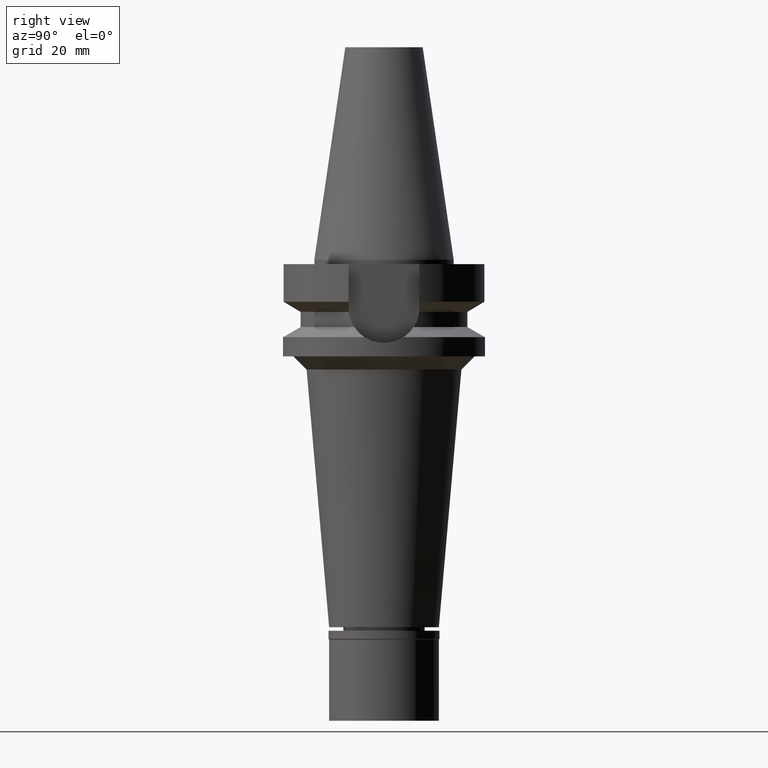
[diagram: clean part render]
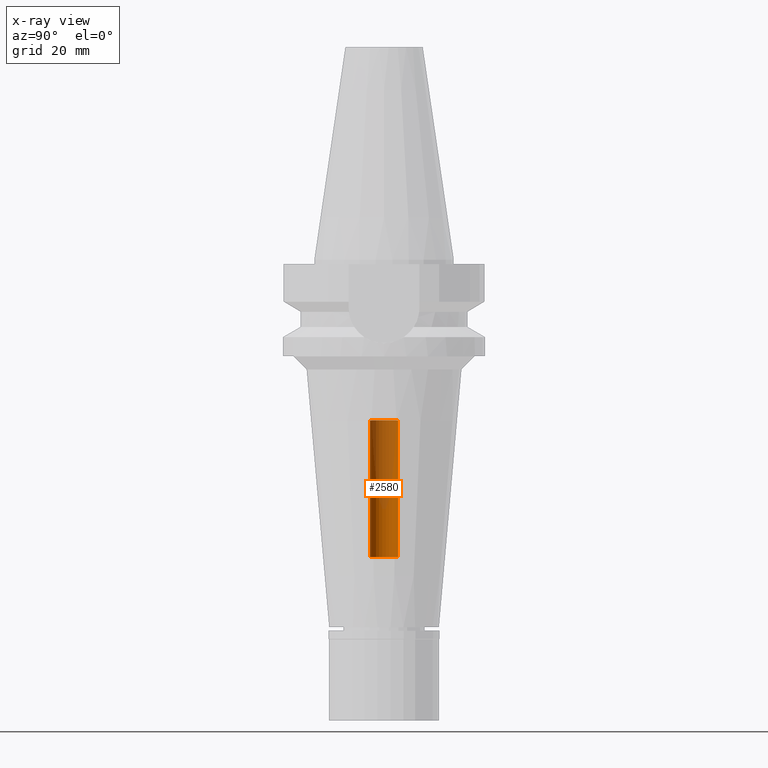
[diagram: x-ray — body ghosted, one internal face saturated and labeled with its STEP entity id]
A machine part, right view, then the same camera in x-ray: the body is ghosted and one INTERNAL B-rep face — a face not visible from any outside direction — is saturated and labeled: STEP entity #2580.
In plain terms, the highlighted cylindrical surface (edge-blend (fillet) strip) has radius 3.2 mm, axis along (0, 0, -1).
Its self-contained STEP definition (entity closure, byte-faithful):
#116 = LINE ( 'NONE', #2938, #2567 ) ;
#193 = CARTESIAN_POINT ( 'NONE',  ( 0.0000000000000000000, 3.200000000000000178, -67.79999999999999716 ) ) ;
#220 = DIRECTION ( 'NONE',  ( 0.0000000000000000000, 1.000000000000000000, 0.0000000000000000000 ) ) ;
#465 = CYLINDRICAL_SURFACE ( 'NONE', #3007, 3.200000000000000178 ) ;
#480 = CARTESIAN_POINT ( 'NONE',  ( 0.0000000000000000000, 0.0000000000000000000, -36.60000000000000142 ) ) ;
#630 = CARTESIAN_POINT ( 'NONE',  ( 0.0000000000000000000, 3.200000000000000178, -36.60000000000000142 ) ) ;
#638 = VERTEX_POINT ( 'NONE', #2502 ) ;
#706 = DIRECTION ( 'NONE',  ( 0.0000000000000000000, -1.000000000000000000, 0.0000000000000000000 ) ) ;
#765 = EDGE_CURVE ( 'NONE', #1130, #2057, #1913, .T. ) ;
#895 = ORIENTED_EDGE ( 'NONE', *, *, #2115, .T. ) ;
#1032 = CARTESIAN_POINT ( 'NONE',  ( 0.0000000000000000000, -3.200000000000000178, -36.60000000000000142 ) ) ;
#1130 = VERTEX_POINT ( 'NONE', #630 ) ;
#1280 = ORIENTED_EDGE ( 'NONE', *, *, #765, .T. ) ;
#1399 = DIRECTION ( 'NONE',  ( 0.0000000000000000000, 0.0000000000000000000, -1.000000000000000000 ) ) ;
#1433 = CARTESIAN_POINT ( 'NONE',  ( 0.0000000000000000000, 3.200000000000000178, -67.79999999999999716 ) ) ;
#1448 = DIRECTION ( 'NONE',  ( 0.0000000000000000000, 0.0000000000000000000, 1.000000000000000000 ) ) ;
#1451 = CARTESIAN_POINT ( 'NONE',  ( 0.0000000000000000000, 0.0000000000000000000, 0.0000000000000000000 ) ) ;
#1464 = DIRECTION ( 'NONE',  ( 0.0000000000000000000, -1.000000000000000000, 0.0000000000000000000 ) ) ;
#1466 = DIRECTION ( 'NONE',  ( 0.0000000000000000000, 0.0000000000000000000, -1.000000000000000000 ) ) ;
#1773 = DIRECTION ( 'NONE',  ( 0.0000000000000000000, 0.0000000000000000000, 1.000000000000000000 ) ) ;
#1874 = AXIS2_PLACEMENT_3D ( 'NONE', #1962, #1466, #706 ) ;
#1908 = EDGE_CURVE ( 'NONE', #638, #2063, #1977, .T. ) ;
#1913 = CIRCLE ( 'NONE', #2691, 3.200000000000000178 ) ;
#1962 = CARTESIAN_POINT ( 'NONE',  ( 0.0000000000000000000, 0.0000000000000000000, -67.79999999999999716 ) ) ;
#1977 = CIRCLE ( 'NONE', #1874, 3.200000000000000178 ) ;
#1984 = ORIENTED_EDGE ( 'NONE', *, *, #1908, .T. ) ;
#2057 = VERTEX_POINT ( 'NONE', #1032 ) ;
#2063 = VERTEX_POINT ( 'NONE', #193 ) ;
#2115 = EDGE_CURVE ( 'NONE', #2063, #1130, #2403, .T. ) ;
#2140 = DIRECTION ( 'NONE',  ( 0.0000000000000000000, 0.0000000000000000000, 1.000000000000000000 ) ) ;
#2403 = LINE ( 'NONE', #1433, #3048 ) ;
#2502 = CARTESIAN_POINT ( 'NONE',  ( 0.0000000000000000000, -3.200000000000000178, -67.79999999999999716 ) ) ;
#2558 = ORIENTED_EDGE ( 'NONE', *, *, #2855, .F. ) ;
#2567 = VECTOR ( 'NONE', #1773, 1000.000000000000000 ) ;
#2580 = ADVANCED_FACE ( 'NONE', ( #2853 ), #465, .F. ) ;
#2665 = EDGE_LOOP ( 'NONE', ( #1280, #2558, #1984, #895 ) ) ;
#2691 = AXIS2_PLACEMENT_3D ( 'NONE', #480, #1448, #220 ) ;
#2853 = FACE_OUTER_BOUND ( 'NONE', #2665, .T. ) ;
#2855 = EDGE_CURVE ( 'NONE', #638, #2057, #116, .T. ) ;
#2938 = CARTESIAN_POINT ( 'NONE',  ( 0.0000000000000000000, -3.200000000000000178, -67.79999999999999716 ) ) ;
#3007 = AXIS2_PLACEMENT_3D ( 'NONE', #1451, #1399, #1464 ) ;
#3048 = VECTOR ( 'NONE', #2140, 1000.000000000000000 ) ;